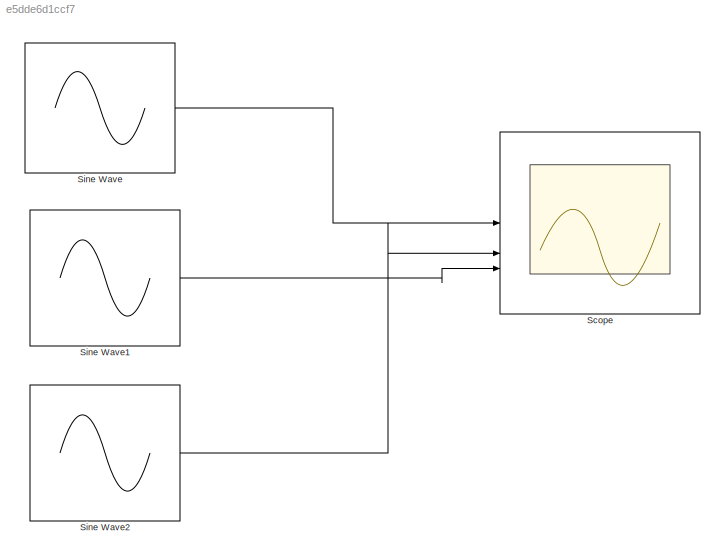
MODEL slx_e5dde6d1ccf7
KIND model
CONFIG AbsTol = auto
CONFIG EnableMultiTasking = off
CONFIG FixedStep = auto
CONFIG MaxStep = auto
CONFIG MinStep = auto
CONFIG RelTol = 1e-3
CONFIG SampleTimeConstraint = Unconstrained
CONFIG SolverName = VariableStepAuto
CONFIG StartTime = 0.0
CONFIG StopTime = 10.0
BLOCK [Scope] Scope
  AttributesFormatString = %<NumInputPorts>=3
  Floating = off
  NumInputPorts = 3
  ScopeSpecificationString = Simulink.scopes.TimeScopeBlockCfg('CurrentConfiguration', extmgr.ConfigurationSet(extmgr.Configuration('Core','General UI',true),extmgr.Configuration('Core','Source UI',true),extmgr.Configuration('Sources','WiredSimulink',true),extmgr.Configuration('Visuals','Time Domain',true,'SerializedDisplays',{struct('MinYLimReal','-5.24978','MaxYLimReal','7.24998','YLabelReal','','MinYLimMag','0.00000','MaxY...<+1390ch>
BLOCK [Sin] Sine Wave
  Amplitude = 5
  Bias = 1
  Frequency = 5
  Offset = 10
  Phase = pi/2
  SampleTime = 0.1
BLOCK [Sin] Sine Wave1
  Amplitude = 3
  Frequency = 50
  Phase = pi/2
  SampleTime = 0.5
BLOCK [Sin] Sine Wave2
  SampleTime = 0.1
LINE Sine Wave1:1 -> Scope:3
LINE Sine Wave2:1 -> Scope:2
LINE Sine Wave:1 -> Scope:1
